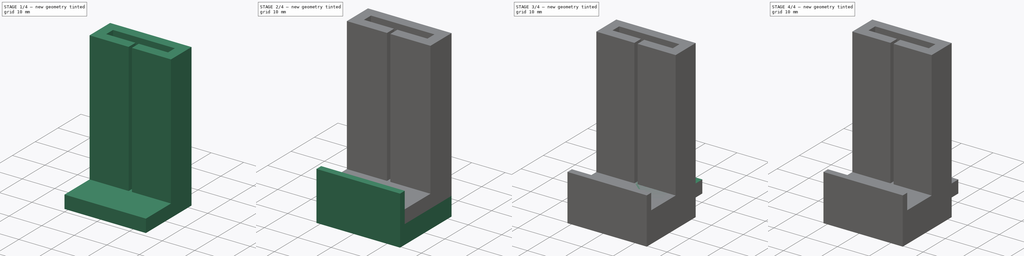
[diagram: build sequence overview — one tinted view per stage of 4, left to right]
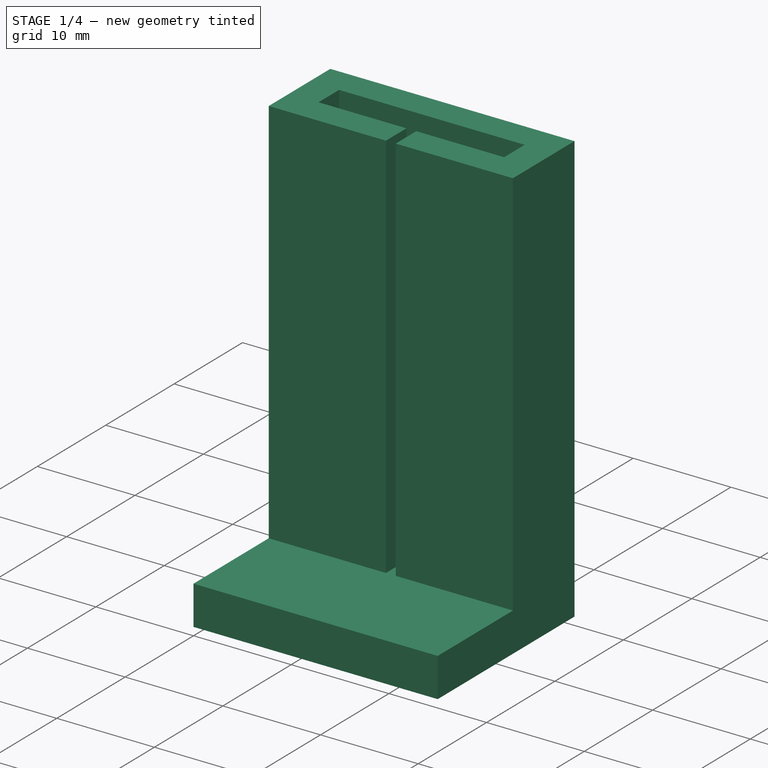
[diagram: stage 1 of 4 — iso view after this stage's code; geometry added in this stage tinted green]
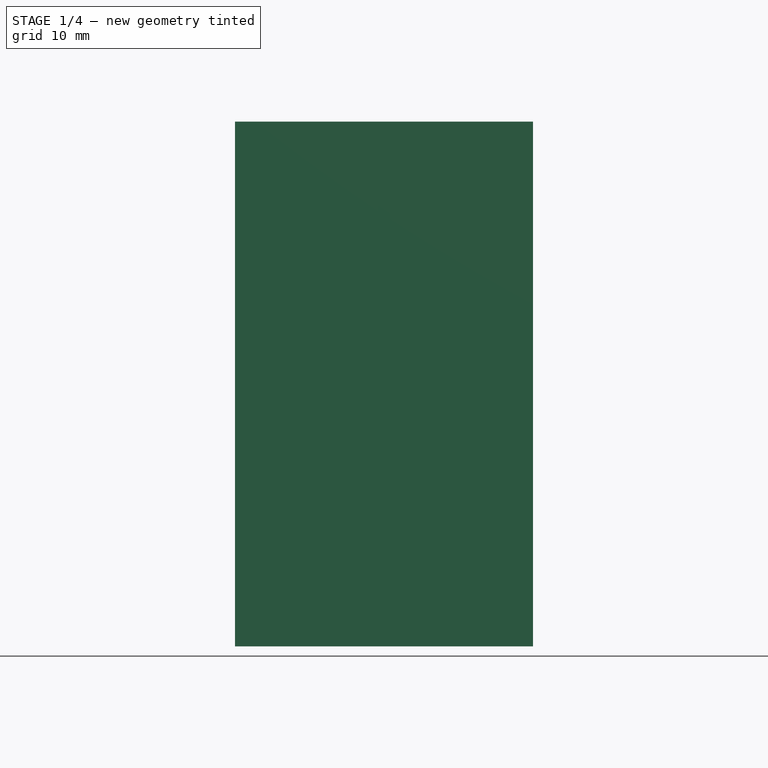
[diagram: stage 1 of 4 — front view after this stage's code; geometry added in this stage tinted green]
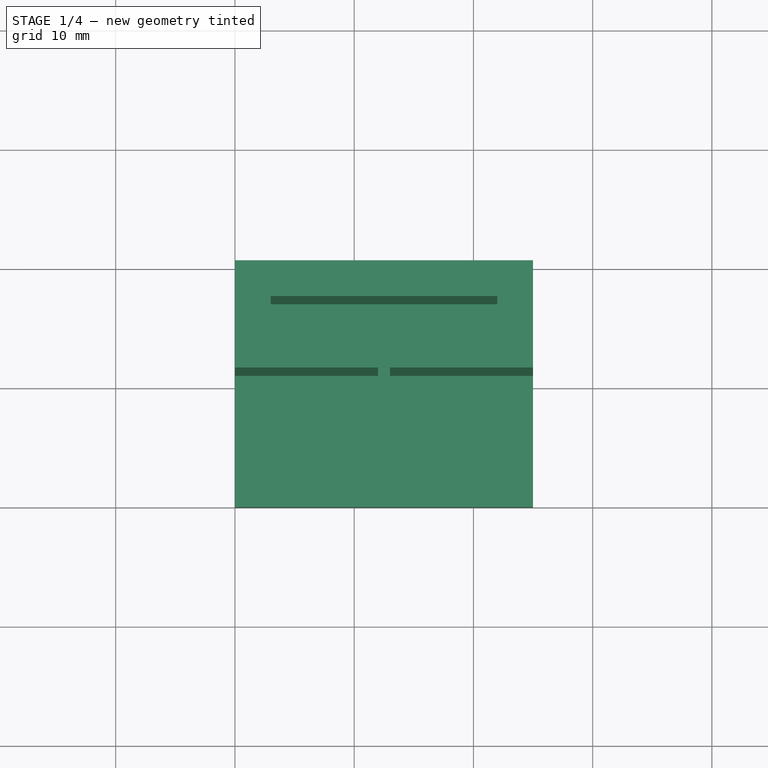
[diagram: stage 1 of 4 — top view after this stage's code; geometry added in this stage tinted green]
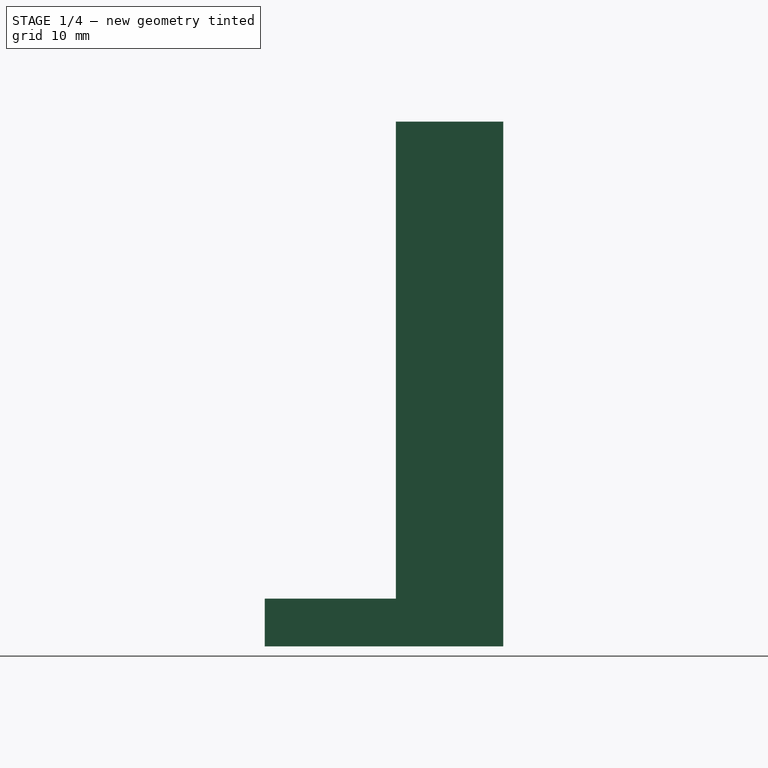
[diagram: stage 1 of 4 — right view after this stage's code; geometry added in this stage tinted green]
FCSTD DOCUMENT  (FreeCAD 0.18R16146 (Git))
Label: mobile stand
License: All rights reserved
LicenseURL: http://en.wikipedia.org/wiki/All_rights_reserved
objects: Sketcher::SketchObject×11, PartDesign::Pad×9, PartDesign::Plane×4, PartDesign::Body×2, Spreadsheet::Sheet×1, PartDesign::ShapeBinder×1
note: 36 computed .brp shape members not serialized (recipe doc carries the construction recipe); baked Part::Feature solids carry a one-line shape summary decoded from their .brp

FEATURE [Sketcher::SketchObject] Sketch  label="bottom-master-sketch"
  MapMode = 5
  Support = -> [XY_Plane001]
  expr: Constraints[41] = p.edge_thickness
  expr: Constraints[38] = p.rail_thickness * 4
  expr: Constraints[35] = p.rail_thickness
  expr: Constraints[34] = p.rail_thickness
  expr: Constraints[33] = p.rail_thickness
  expr: Constraints[32] = p.rail_thickness
  expr: Constraints[36] = p.rail_thickness
  expr: Constraints[31] = p.base_length
  expr: Constraints[28] = p.base_width
  sketch-geometry (14):
    g0: LineSegment StartX=0 StartY=0 StartZ=0 EndX=25 EndY=0 EndZ=0
    g1: LineSegment StartX=25 StartY=0 StartZ=0 EndX=25 EndY=20 EndZ=0
    g2: LineSegment StartX=25 StartY=20 StartZ=0 EndX=0 EndY=20 EndZ=0
    g3: LineSegment StartX=0 StartY=20 StartZ=0 EndX=0 EndY=0 EndZ=0
    g4: LineSegment StartX=0 StartY=11 StartZ=0 EndX=12 EndY=11 EndZ=0
    g5: LineSegment StartX=12 StartY=11 StartZ=0 EndX=12 EndY=14 EndZ=0
    g6: LineSegment StartX=12 StartY=14 StartZ=0 EndX=3 EndY=14 EndZ=0
    g7: LineSegment StartX=3 StartY=14 StartZ=0 EndX=3 EndY=17 EndZ=0
    g8: LineSegment StartX=3 StartY=17 StartZ=0 EndX=22 EndY=17 EndZ=0
    g9: LineSegment StartX=22 StartY=17 StartZ=0 EndX=22 EndY=14 EndZ=0
    g10: LineSegment StartX=22 StartY=14 StartZ=0 EndX=13 EndY=14 EndZ=0
    g11: LineSegment StartX=13 StartY=14 StartZ=0 EndX=13 EndY=11 EndZ=0
    g12: LineSegment StartX=13 StartY=11 StartZ=0 EndX=25 EndY=11 EndZ=0
    g13: LineSegment StartX=0 StartY=-2 StartZ=0 EndX=25 EndY=-2 EndZ=0
  constraints (43):
    c: Coincident(g0,g1)
    c: Coincident(g1,g2)
    c: Coincident(g2,g3)
    c: Coincident(g3,g0)
    c: Horizontal(g0)
    c: Horizontal(g2)
    c: Vertical(g1)
    c: Vertical(g3)
    c: Coincident(g0,g-1)
    c: PointOnObject(g4,g3)
    c: Horizontal(g4)
    c: Coincident(g4,g5)
    c: Vertical(g5)
    c: Coincident(g5,g6)
    c: Horizontal(g6)
    c: Coincident(g6,g7)
    c: Vertical(g7)
    c: Coincident(g7,g8)
    c: Horizontal(g8)
    c: Coincident(g8,g9)
    c: Vertical(g9)
    c: Coincident(g9,g10)
    c: Horizontal(g10)
    c: Coincident(g10,g11)
    c: Vertical(g11)
    c: Coincident(g11,g12)
    c: PointOnObject(g12,g1)
    c: Horizontal(g12)
    c: DistanceY(g1,g1) = 20
    c: Horizontal(g10,g5)
    c: Horizontal(g11,g4)
    c: DistanceX(g2,g2) = 25
    c: DistanceY(g8,g1) = 3
    c: DistanceX(g8,g1) = 3
    c: DistanceX(g2,g7) = 3
    c: DistanceY(g5,g5) = 3
    c: DistanceY(g7,g7) = 3
    c: Equal(g6,g10)
    c: DistanceX(g4,g4) = 12
    c: PointOnObject(g13,g-2)
    c: Horizontal(g13)
    c: DistanceY(g13,g0) = 2
    c: Vertical(g13,g0)
FEATURE [Sketcher::SketchObject] Sketch001  label="base"
  ExternalGeometry = -> [Sketch]
  MapMode = 5
  Support = -> [XY_Plane001]
  sketch-geometry (4):
    g0: LineSegment StartX=0 StartY=20 StartZ=0 EndX=25 EndY=20 EndZ=0
    g1: LineSegment StartX=25 StartY=20 StartZ=0 EndX=25 EndY=0 EndZ=0
    g2: LineSegment StartX=25 StartY=0 StartZ=0 EndX=0 EndY=0 EndZ=0
    g3: LineSegment StartX=0 StartY=0 StartZ=0 EndX=0 EndY=20 EndZ=0
  constraints (10):
    c: Coincident(g0,g1)
    c: Coincident(g1,g2)
    c: Coincident(g2,g3)
    c: Coincident(g3,g0)
    c: Horizontal(g0)
    c: Horizontal(g2)
    c: Vertical(g1)
    c: Vertical(g3)
    c: Coincident(g0,g-6)
    c: Coincident(g1,g-4)
FEATURE [PartDesign::Pad] Pad  label="base001"
  Length = 4
  Length2 = 100
  Profile = -> Sketch001
  Type = 0
  expr: Length = p.base_thickness
FEATURE [PartDesign::Plane] DatumPlane
  AttachmentOffset = pos=(0,0,4) rot=(0,0,1;0rad)
  Length = 41.4807
  MapMode = 5
  Placement = pos=(0,0,4) rot=(0,0,1;0rad)
  ResizeMode = 0
  Support = -> [XY_Plane001]
  Width = 36.4807
  expr: AttachmentOffset.Base.z = p.base_thickness
FEATURE [Sketcher::SketchObject] Sketch002
  ExternalGeometry = -> [Sketch]
  MapMode = 5
  Placement = pos=(0,0,4) rot=(0,0,1;0rad)
  Support = -> [DatumPlane]
  sketch-geometry (12):
    g0: LineSegment StartX=0 StartY=20 StartZ=0 EndX=25 EndY=20 EndZ=0
    g1: LineSegment StartX=25 StartY=20 StartZ=0 EndX=25 EndY=11 EndZ=0
    g2: LineSegment StartX=25 StartY=11 StartZ=0 EndX=13 EndY=11 EndZ=0
    g3: LineSegment StartX=13 StartY=11 StartZ=0 EndX=13 EndY=14 EndZ=0
    g4: LineSegment StartX=13 StartY=14 StartZ=0 EndX=22 EndY=14 EndZ=0
    g5: LineSegment StartX=22 StartY=14 StartZ=0 EndX=22 EndY=17 EndZ=0
    g6: LineSegment StartX=22 StartY=17 StartZ=0 EndX=3 EndY=17 EndZ=0
    g7: LineSegment StartX=3 StartY=17 StartZ=0 EndX=3 EndY=14 EndZ=0
    g8: LineSegment StartX=3 StartY=14 StartZ=0 EndX=12 EndY=14 EndZ=0
    g9: LineSegment StartX=12 StartY=14 StartZ=0 EndX=12 EndY=11 EndZ=0
    g10: LineSegment StartX=12 StartY=11 StartZ=0 EndX=0 EndY=11 EndZ=0
    g11: LineSegment StartX=0 StartY=11 StartZ=0 EndX=0 EndY=20 EndZ=0
  constraints (24):
    c: Coincident(g-4,g0)
    c: Coincident(g0,g-4)
    c: Coincident(g0,g1)
    c: Coincident(g1,g-12)
    c: Coincident(g1,g2)
    c: Coincident(g2,g-12)
    c: Coincident(g2,g3)
    c: Coincident(g3,g-11)
    c: Coincident(g3,g4)
    c: Coincident(g4,g-10)
    c: Coincident(g4,g5)
    c: Coincident(g5,g-9)
    c: Coincident(g5,g6)
    c: Coincident(g6,g-8)
    c: Coincident(g6,g7)
    c: Coincident(g7,g-8)
    c: Coincident(g7,g8)
    c: Coincident(g8,g-7)
    c: Coincident(g8,g9)
    c: Coincident(g9,g-6)
    c: Coincident(g9,g10)
    c: Coincident(g10,g-5)
    c: Coincident(g10,g11)
    c: Coincident(g11,g0)
FEATURE [PartDesign::Pad] Pad001  label="rail"
  BaseFeature = -> Pad
  Length = 40
  Length2 = 100
  Profile = -> Sketch002
  Type = 0
  expr: Length = p.bottom_height
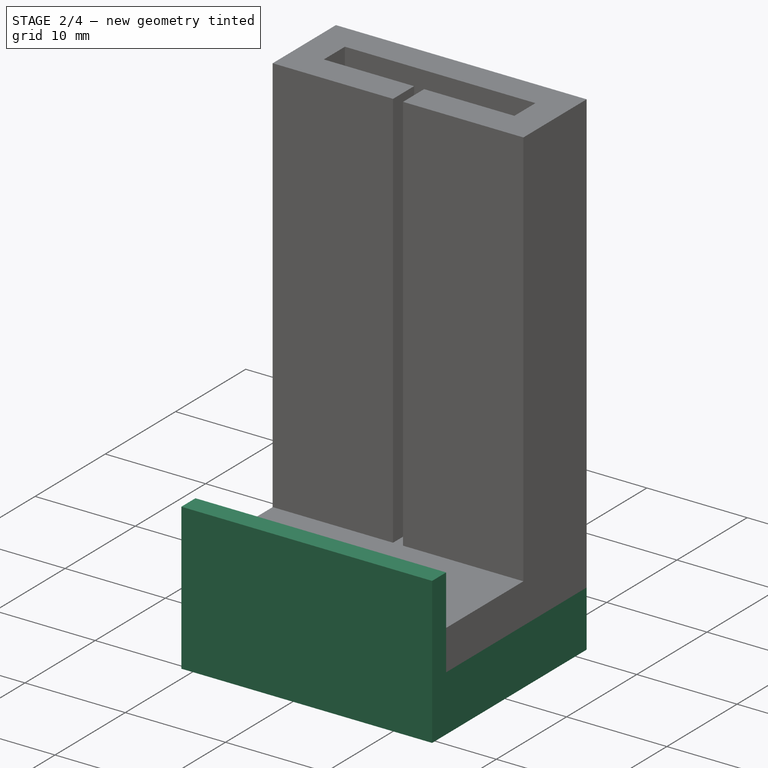
[diagram: stage 2 of 4 — iso view after this stage's code; geometry added in this stage tinted green]
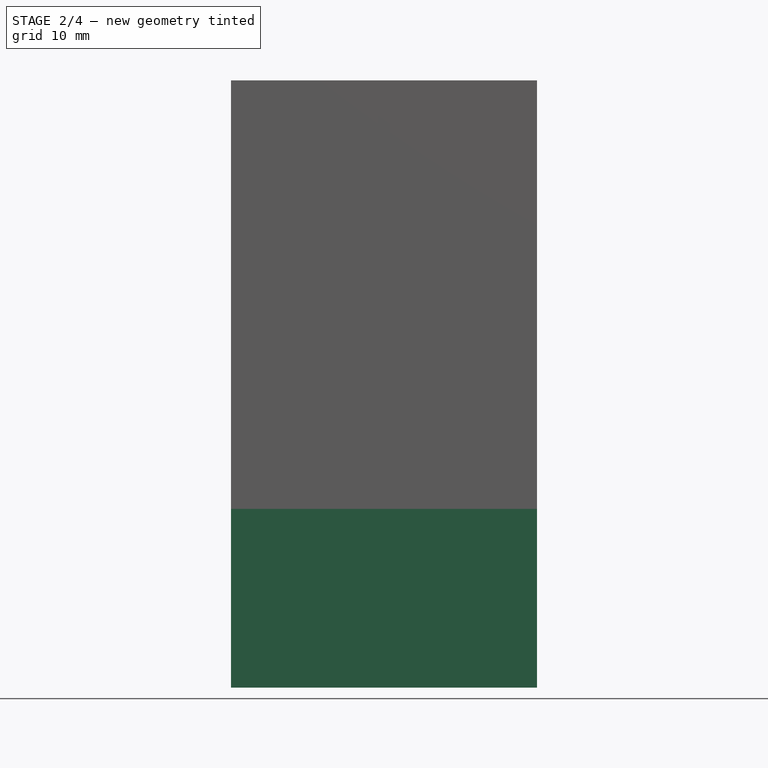
[diagram: stage 2 of 4 — front view after this stage's code; geometry added in this stage tinted green]
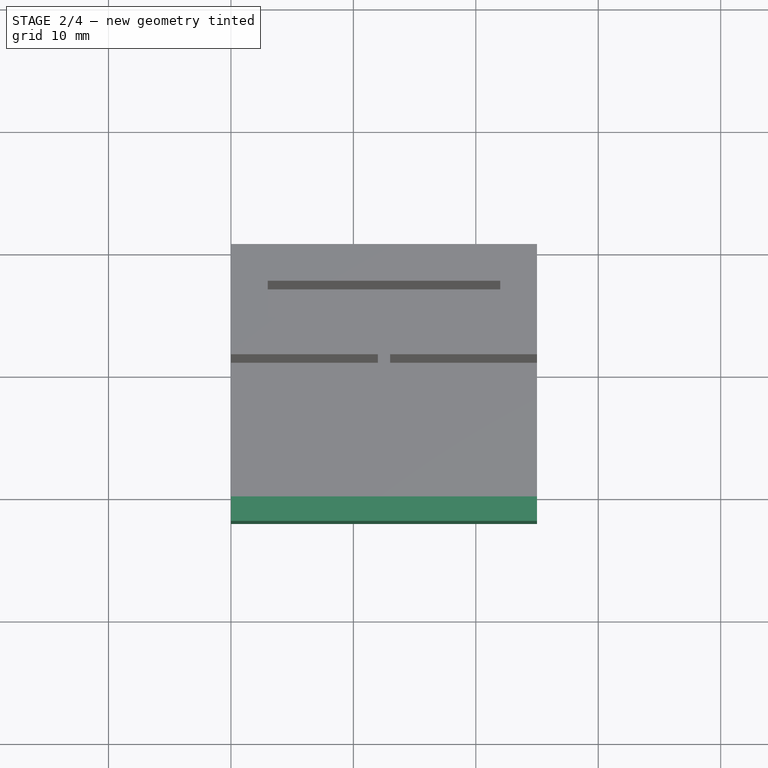
[diagram: stage 2 of 4 — top view after this stage's code; geometry added in this stage tinted green]
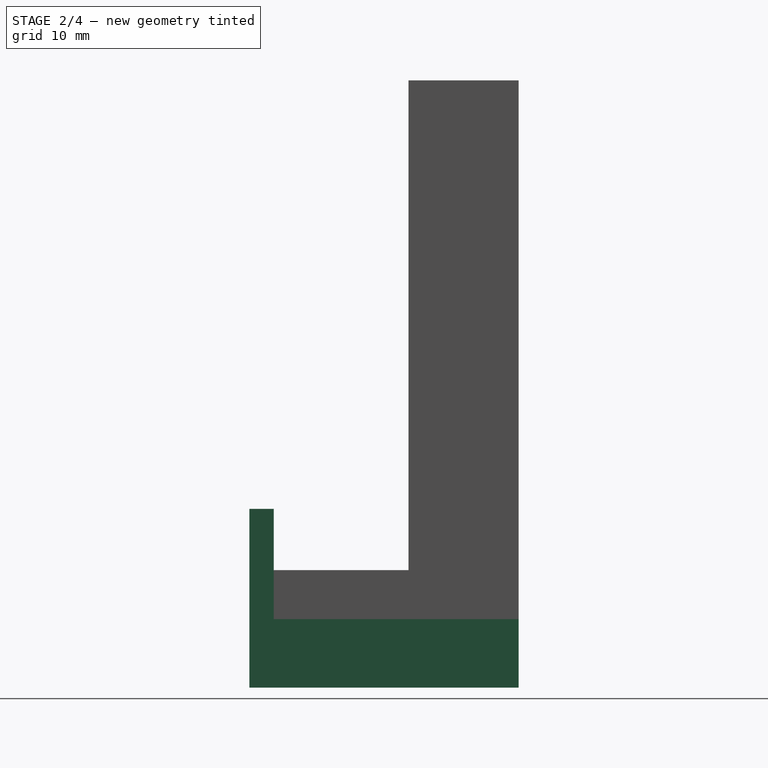
[diagram: stage 2 of 4 — right view after this stage's code; geometry added in this stage tinted green]
FEATURE [PartDesign::Body] Body001  label="top"
  Group = -> [Sketch004,Sketch003,Pad002,DatumPlane001,Sketch005,Pad003,ShapeBinder,DatumPlane003,Sketch007,Pad005,Sketch008,Pad006]
  Origin = -> Origin002
  Placement = pos=(25,-3,85) rot=(0,1,0;3.14159rad)
  Tip = -> Pad006
FEATURE [Sketcher::SketchObject] Sketch009  label="edge_sketch001"
  MapMode = 5
  Placement = pos=(0,0,0) rot=(0.57735,0.57735,0.57735;2.0944rad)
  Support = -> [YZ_Plane001]
  expr: Constraints[10] = p.edge_length
  expr: Constraints[9] = p.edge_thickness
  sketch-geometry (4):
    g0: LineSegment StartX=0 StartY=0 StartZ=0 EndX=-2 EndY=0 EndZ=0
    g1: LineSegment StartX=-2 StartY=0 StartZ=0 EndX=-2 EndY=9 EndZ=0
    g2: LineSegment StartX=-2 StartY=9 StartZ=0 EndX=0 EndY=9 EndZ=0
    g3: LineSegment StartX=0 StartY=9 StartZ=0 EndX=0 EndY=0 EndZ=0
  constraints (11):
    c: Coincident(g0,g1)
    c: Coincident(g1,g2)
    c: Coincident(g2,g3)
    c: Coincident(g3,g0)
    c: Horizontal(g0)
    c: Horizontal(g2)
    c: Vertical(g1)
    c: Vertical(g3)
    c: Coincident(g0,g-1)
    c: DistanceX(g0,g0) = 2
    c: DistanceY(g1,g1) = 9
FEATURE [PartDesign::Pad] Pad007
  BaseFeature = -> Pad001
  Length = 25
  Length2 = 100
  Profile = -> Sketch009
  Type = 0
  expr: Length = p.base_length
FEATURE [Sketcher::SketchObject] Sketch010  label="nut_sketch"
  ExternalGeometry = -> [Sketch]
  MapMode = 5
  Support = -> [XY_Plane001]
  expr: Constraints[11] = p.nut_hole_diameter
  sketch-geometry (5):
    g0: LineSegment StartX=0 StartY=20 StartZ=0 EndX=25 EndY=20 EndZ=0
    g1: LineSegment StartX=25 StartY=20 StartZ=0 EndX=25 EndY=-2 EndZ=0
    g2: LineSegment StartX=25 StartY=-2 StartZ=0 EndX=0 EndY=-2 EndZ=0
    g3: LineSegment StartX=0 StartY=-2 StartZ=0 EndX=0 EndY=20 EndZ=0
    g4: Circle CenterX=12.5 CenterY=9 CenterZ=0 NormalX=0 NormalY=0 NormalZ=1 AngleXU=0 Radius=5.5
  constraints (12):
    c: Coincident(g0,g1)
    c: Coincident(g1,g2)
    c: Coincident(g2,g3)
    c: Coincident(g3,g0)
    c: Horizontal(g0)
    c: Horizontal(g2)
    c: Vertical(g1)
    c: Vertical(g3)
    c: Coincident(g0,g-4)
    c: Coincident(g1,g-3)
    c: Symmetric(g2,g0,g4)
    c: Diameter(g4) = 11
FEATURE [PartDesign::Pad] Pad008
  BaseFeature = -> Pad007
  Length = 5.6
  Length2 = 100
  Profile = -> Sketch010
  Reversed = true
  Type = 0
  expr: Length = p.bottom_nut_height
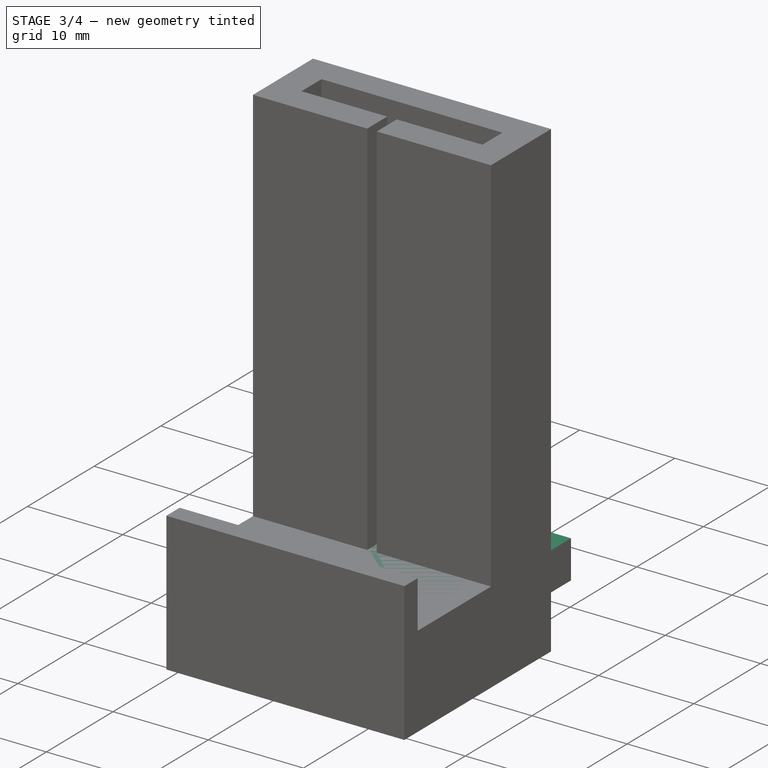
[diagram: stage 3 of 4 — iso view after this stage's code; geometry added in this stage tinted green]
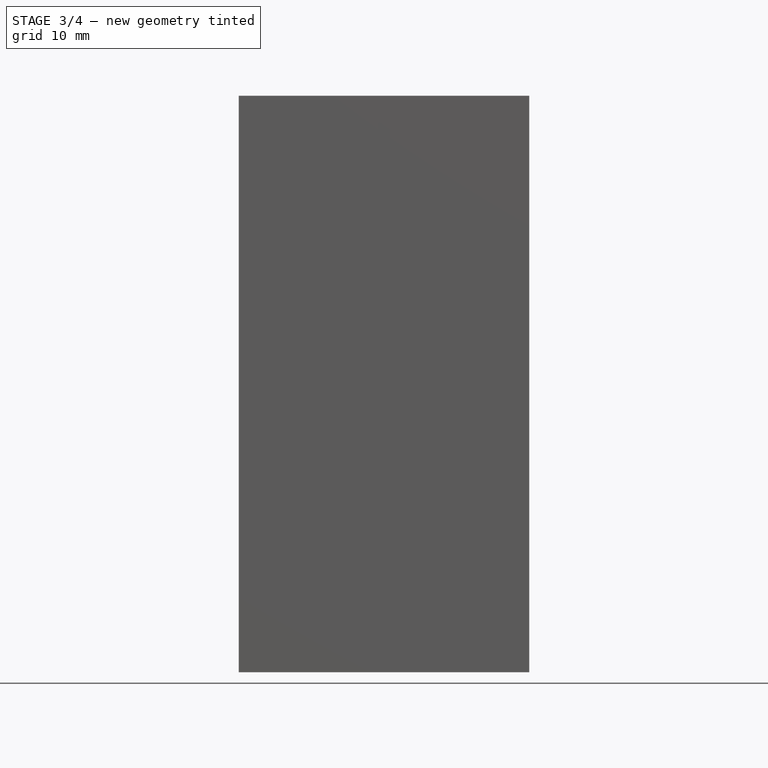
[diagram: stage 3 of 4 — front view after this stage's code; geometry added in this stage tinted green]
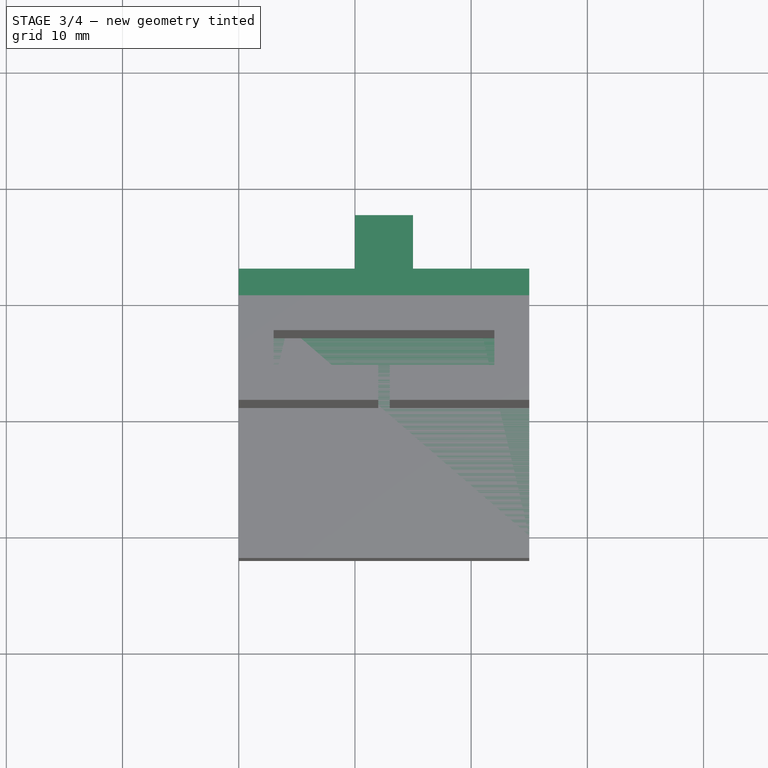
[diagram: stage 3 of 4 — top view after this stage's code; geometry added in this stage tinted green]
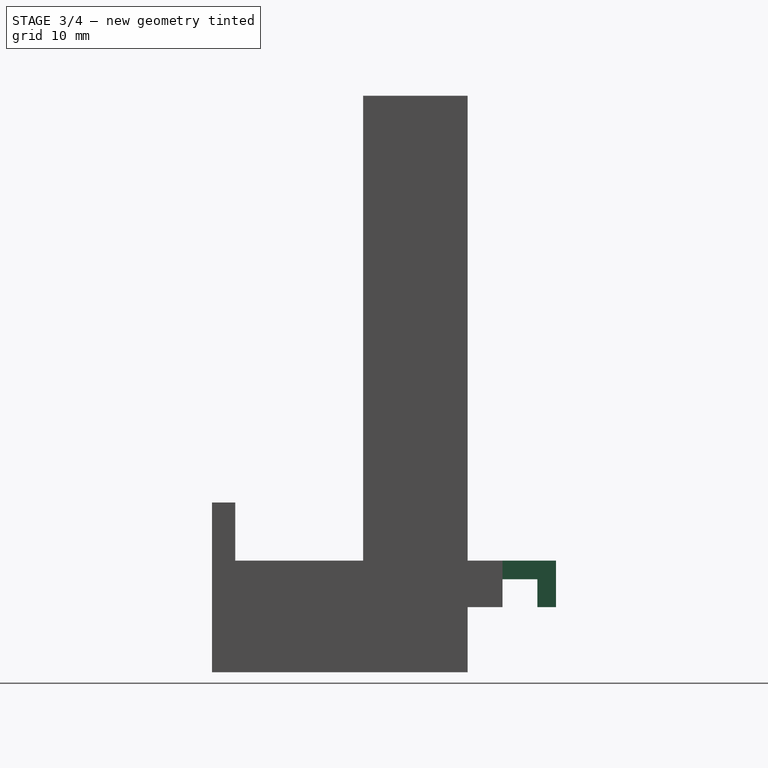
[diagram: stage 3 of 4 — right view after this stage's code; geometry added in this stage tinted green]
FEATURE [PartDesign::Plane] DatumPlane001
  AttachmentOffset = pos=(0,0,4) rot=(0,0,1;0rad)
  Length = 42.2553
  MapMode = 5
  Placement = pos=(0,0,4) rot=(0,0,1;0rad)
  ResizeMode = 0
  Support = -> [XY_Plane002]
  Width = 44.8553
  expr: AttachmentOffset.Base.z = p.base_thickness
FEATURE [Sketcher::SketchObject] Sketch004  label="top-master-sketch"
  MapMode = 5
  Support = -> [XY_Plane002]
  expr: Constraints[32] = p.rail_thickness
  expr: Constraints[22] = (p.base_length - p.insert_length) / 2
  expr: Constraints[21] = p.insert_length
  expr: Constraints[20] = p.insert_thickness
  expr: Constraints[18] = p.base_width
  expr: Constraints[19] = p.base_length
  sketch-geometry (12):
    g0: LineSegment StartX=0 StartY=0 StartZ=0 EndX=25 EndY=0 EndZ=0
    g1: LineSegment StartX=25 StartY=0 StartZ=0 EndX=25 EndY=20 EndZ=0
    g2: LineSegment StartX=25 StartY=20 StartZ=0 EndX=0 EndY=20 EndZ=0
    g3: LineSegment StartX=0 StartY=20 StartZ=0 EndX=0 EndY=0 EndZ=0
    g4: LineSegment StartX=4.2 StartY=20 StartZ=0 EndX=20.8 EndY=20 EndZ=0
    g5: LineSegment StartX=20.8 StartY=20 StartZ=0 EndX=20.8 EndY=18 EndZ=0
    g6: LineSegment StartX=20.8 StartY=18 StartZ=0 EndX=4.2 EndY=18 EndZ=0
    g7: LineSegment StartX=4.2 StartY=18 StartZ=0 EndX=4.2 EndY=20 EndZ=0
    g8: LineSegment StartX=0 StartY=20 StartZ=0 EndX=25 EndY=20 EndZ=0
    g9: LineSegment StartX=25 StartY=20 StartZ=0 EndX=25 EndY=23 EndZ=0
    g10: LineSegment StartX=25 StartY=23 StartZ=0 EndX=0 EndY=23 EndZ=0
    g11: LineSegment StartX=0 StartY=23 StartZ=0 EndX=0 EndY=20 EndZ=0
  constraints (33):
    c: Coincident(g0,g1)
    c: Coincident(g1,g2)
    c: Coincident(g2,g3)
    c: Coincident(g3,g0)
    c: Horizontal(g0)
    c: Horizontal(g2)
    c: Vertical(g1)
    c: Vertical(g3)
    c: Coincident(g0,g-1)
    c: Coincident(g4,g5)
    c: Coincident(g5,g6)
    c: Coincident(g6,g7)
    c: Coincident(g7,g4)
    c: Horizontal(g4)
    c: Horizontal(g6)
    c: Vertical(g5)
    c: Vertical(g7)
    c: PointOnObject(g4,g2)
    c: DistanceY(g1,g1) = 20
    c: DistanceX(g0,g0) = 25
    c: DistanceY(g5,g5) = 2
    c: DistanceX(g6,g6) = 16.6
    c: DistanceX(g2,g4) = 4.2
    c: Coincident(g8,g9)
    c: Coincident(g9,g10)
    c: Coincident(g10,g11)
    c: Coincident(g11,g8)
    c: Horizontal(g10)
    c: Vertical(g9)
    c: Vertical(g11)
    c: Coincident(g8,g2)
    c: Coincident(g8,g1)
    c: DistanceY(g9,g9) = 3
FEATURE [Sketcher::SketchObject] Sketch003  label="base003"
  ExternalGeometry = -> [Sketch004]
  MapMode = 5
  Support = -> [XY_Plane002]
  sketch-geometry (4):
    g0: LineSegment StartX=0 StartY=23 StartZ=0 EndX=25 EndY=23 EndZ=0
    g1: LineSegment StartX=25 StartY=23 StartZ=0 EndX=25 EndY=0 EndZ=0
    g2: LineSegment StartX=25 StartY=0 StartZ=0 EndX=0 EndY=0 EndZ=0
    g3: LineSegment StartX=0 StartY=0 StartZ=0 EndX=0 EndY=23 EndZ=0
  constraints (10):
    c: Coincident(g0,g1)
    c: Coincident(g1,g2)
    c: Coincident(g2,g3)
    c: Coincident(g3,g0)
    c: Horizontal(g0)
    c: Horizontal(g2)
    c: Vertical(g1)
    c: Vertical(g3)
    c: Coincident(g0,g-3)
    c: Coincident(g1,g-4)
FEATURE [PartDesign::Pad] Pad002  label="base002"
  Length = 4
  Length2 = 100
  Profile = -> Sketch003
  Type = 0
  expr: Length = p.base_thickness
FEATURE [Sketcher::SketchObject] Sketch005
  ExternalGeometry = -> [Sketch004]
  MapMode = 5
  Placement = pos=(0,0,4) rot=(0,0,1;0rad)
  Support = -> [DatumPlane001]
  sketch-geometry (4):
    g0: LineSegment StartX=4.2 StartY=20 StartZ=0 EndX=20.8 EndY=20 EndZ=0
    g1: LineSegment StartX=20.8 StartY=20 StartZ=0 EndX=20.8 EndY=18 EndZ=0
    g2: LineSegment StartX=20.8 StartY=18 StartZ=0 EndX=4.2 EndY=18 EndZ=0
    g3: LineSegment StartX=4.2 StartY=18 StartZ=0 EndX=4.2 EndY=20 EndZ=0
  constraints (10):
    c: Coincident(g0,g1)
    c: Coincident(g1,g2)
    c: Coincident(g2,g3)
    c: Coincident(g3,g0)
    c: Horizontal(g0)
    c: Horizontal(g2)
    c: Vertical(g1)
    c: Vertical(g3)
    c: Coincident(g0,g-8)
    c: Coincident(g1,g-7)
FEATURE [PartDesign::Pad] Pad003
  BaseFeature = -> Pad002
  Length = 40
  Length2 = 100
  Profile = -> Sketch005
  Type = 0
  expr: Length = p.bottom_height
FEATURE [Spreadsheet::Sheet] Spreadsheet  label="p"
  cells = A1=base_length; B1(base_length)==25mm; A2=base_width; B2(base_width)==20mm; A3=base_thickness; B3(base_thickness)==4mm; A4=rail_thickness; B4(rail_thickness)==3mm; A5=insert_thickness; B5(insert_thickness)==rail_thickness - 1mm; A6=insert_length; B6(insert_length)==base_length - 2 * base_thickness - 0.4mm; A7=bottom_height; B7(bottom_height)==40mm; A8=top_height; B8(top_height)==bottom_height; A9=hook_thickness; B9(hook_thickness)==5mm; A10=edge_thickness; B10(edge_thickness)==2mm; A11=edge_length; B11(edge_length)==5mm + base_thickness; A12=bottom_nut_height; B12(bottom_nut_height)==5.6mm; A13=nut_hole_diameter; B13(nut_hole_diameter)==11mm
FEATURE [PartDesign::Plane] DatumPlane002  label="hook_plane"
  AttachmentOffset = pos=(0,0,12.5) rot=(0,0,1;0rad)
  Length = 38.0498
  MapMode = 5
  Placement = pos=(12.5,-2.8e-15,2.8e-15) rot=(0.57735,0.57735,0.57735;2.0944rad)
  ResizeMode = 0
  Support = -> [YZ_Plane001]
  Width = 62.0498
  expr: AttachmentOffset.Base.z = p.base_length / 2
FEATURE [Sketcher::SketchObject] Sketch006  label="hook_sketch"
  MapMode = 5
  Placement = pos=(12.5,-2.8e-15,2.8e-15) rot=(0.57735,0.57735,0.57735;2.0944rad)
  Support = -> [DatumPlane002]
  expr: Constraints[17] = p.bottom_nut_height
  expr: Constraints[16] = p.base_width
  sketch-geometry (6):
    g0: LineSegment StartX=20 StartY=-0.6 StartZ=0 EndX=24.6 EndY=-0.6 EndZ=0
    g1: LineSegment StartX=24.6 StartY=-0.6 StartZ=0 EndX=24.6 EndY=-5.6 EndZ=0
    g2: LineSegment StartX=24.6 StartY=-5.6 StartZ=0 EndX=23 EndY=-5.6 EndZ=0
    g3: LineSegment StartX=23 StartY=-5.6 StartZ=0 EndX=23 EndY=-2.2 EndZ=0
    g4: LineSegment StartX=23 StartY=-2.2 StartZ=0 EndX=20 EndY=-2.2 EndZ=0
    g5: LineSegment StartX=20 StartY=-2.2 StartZ=0 EndX=20 EndY=-0.6 EndZ=0
  constraints (18):
    c: Horizontal(g0)
    c: Coincident(g0,g1)
    c: Vertical(g1)
    c: Coincident(g1,g2)
    c: Horizontal(g2)
    c: Coincident(g2,g3)
    c: Vertical(g3)
    c: Coincident(g3,g4)
    c: Horizontal(g4)
    c: Coincident(g4,g5)
    c: Coincident(g5,g0)
    c: Vertical(g5)
    c: DistanceY(g1,g0) = 5
    c: DistanceX(g4,g3) = 3
    c: DistanceX(g3,g0) = 1.6
    c: DistanceY(g3,g0) = 1.6
    c: DistanceX(g-1,g0) = 20
    c: DistanceY(g2,g-1) = 5.6
FEATURE [PartDesign::ShapeBinder] ShapeBinder
  Placement = pos=(12.5,-2.8e-15,2.8e-15) rot=(0.57735,0.57735,0.57735;2.0944rad)
  Support = -> [Sketch006]
  TraceSupport = false
FEATURE [PartDesign::Plane] DatumPlane003  label="hook_plane001"
  AttachmentOffset = pos=(0,0,12.5) rot=(0,0,1;0rad)
  Length = 46.612
  MapMode = 5
  Placement = pos=(12.5,-2.8e-15,2.8e-15) rot=(0.57735,0.57735,0.57735;2.0944rad)
  ResizeMode = 0
  Support = -> [YZ_Plane002]
  Width = 63.012
  expr: AttachmentOffset.Base.z = p.base_length / 2
FEATURE [Sketcher::SketchObject] Sketch007
  ExternalGeometry = -> [Pad003]
  MapMode = 5
  Placement = pos=(12.5,-2.8e-15,2.8e-15) rot=(0.57735,0.57735,0.57735;2.0944rad)
  Support = -> [DatumPlane003]
  sketch-geometry (6):
    g0: LineSegment StartX=23 StartY=4 StartZ=0 EndX=27.6 EndY=4 EndZ=0
    g1: LineSegment StartX=27.6 StartY=4 StartZ=0 EndX=27.6 EndY=0 EndZ=0
    g2: LineSegment StartX=27.6 StartY=0 StartZ=0 EndX=26 EndY=0 EndZ=0
    g3: LineSegment StartX=26 StartY=0 StartZ=0 EndX=26 EndY=2.4 EndZ=0
    g4: LineSegment StartX=26 StartY=2.4 StartZ=0 EndX=23 EndY=2.4 EndZ=0
    g5: LineSegment StartX=23 StartY=2.4 StartZ=0 EndX=23 EndY=4 EndZ=0
  constraints (17):
    c: Coincident(g-3,g0)
    c: Horizontal(g0)
    c: Coincident(g0,g1)
    c: PointOnObject(g1,g-1)
    c: Vertical(g1)
    c: Coincident(g1,g2)
    c: Horizontal(g2)
    c: Coincident(g2,g3)
    c: Vertical(g3)
    c: Coincident(g3,g4)
    c: PointOnObject(g4,g-3)
    c: Horizontal(g4)
    c: Coincident(g4,g5)
    c: Coincident(g5,g0)
    c: DistanceX(g3,g0) = 1.6
    c: DistanceX(g4,g3) = 3
    c: DistanceY(g3,g0) = 1.6
FEATURE [PartDesign::Pad] Pad005
  BaseFeature = -> Pad003
  Length = 5
  Length2 = 100
  Midplane = true
  Profile = -> Sketch007
  Type = 0
  expr: Length = p.hook_thickness
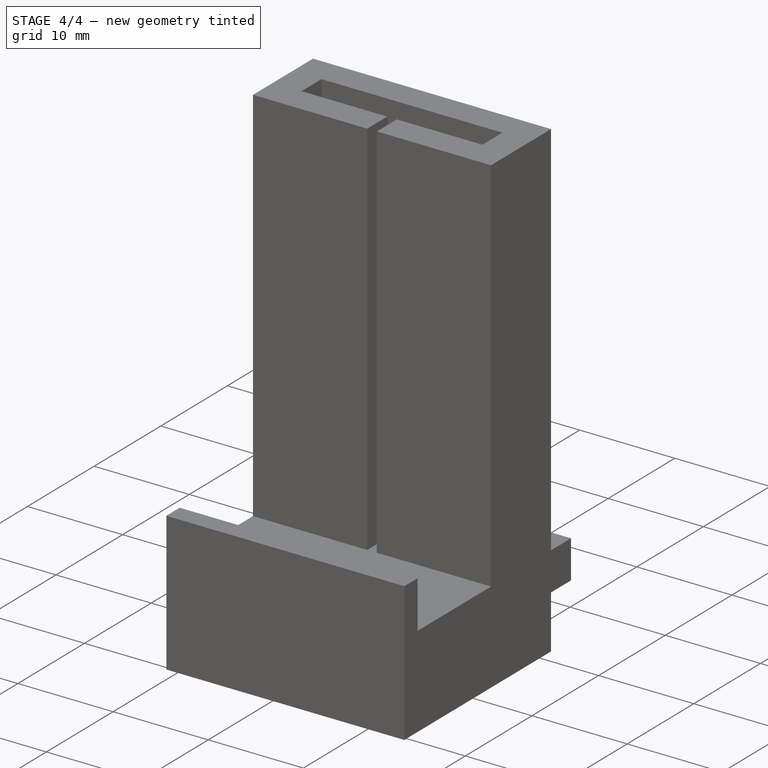
[diagram: stage 4 of 4 — iso view after this stage's code; geometry added in this stage tinted green]
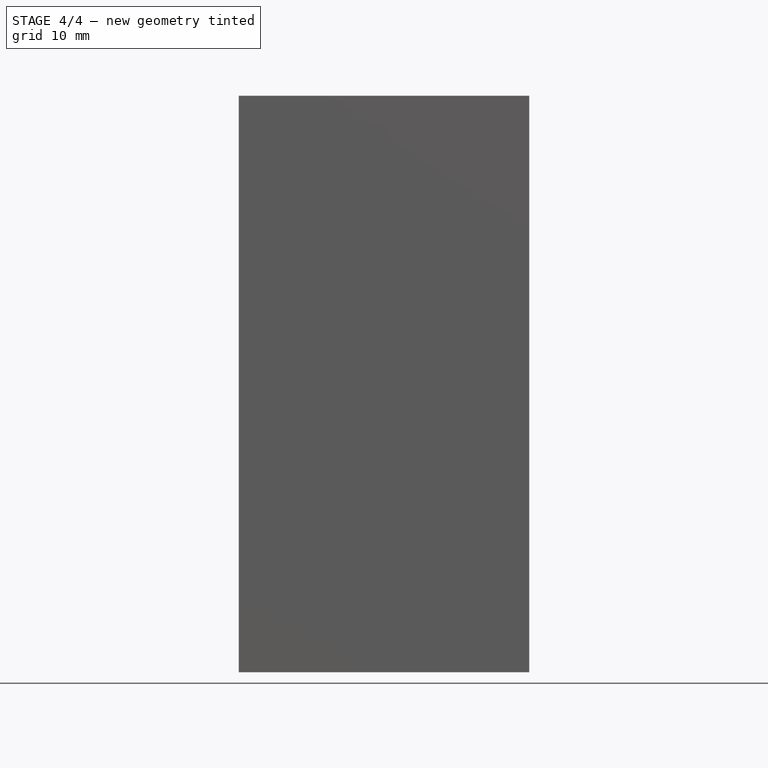
[diagram: stage 4 of 4 — front view after this stage's code; geometry added in this stage tinted green]
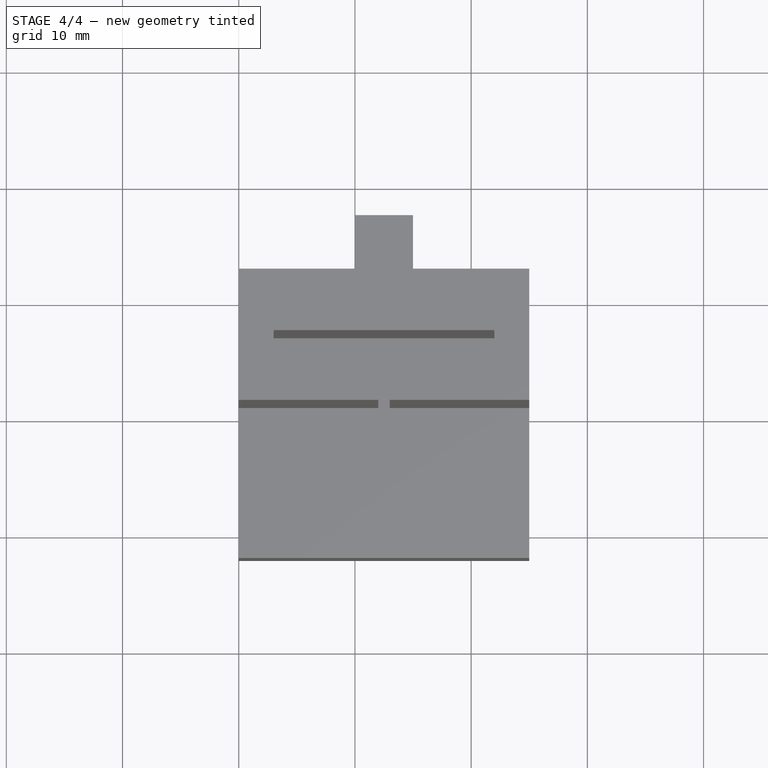
[diagram: stage 4 of 4 — top view after this stage's code; geometry added in this stage tinted green]
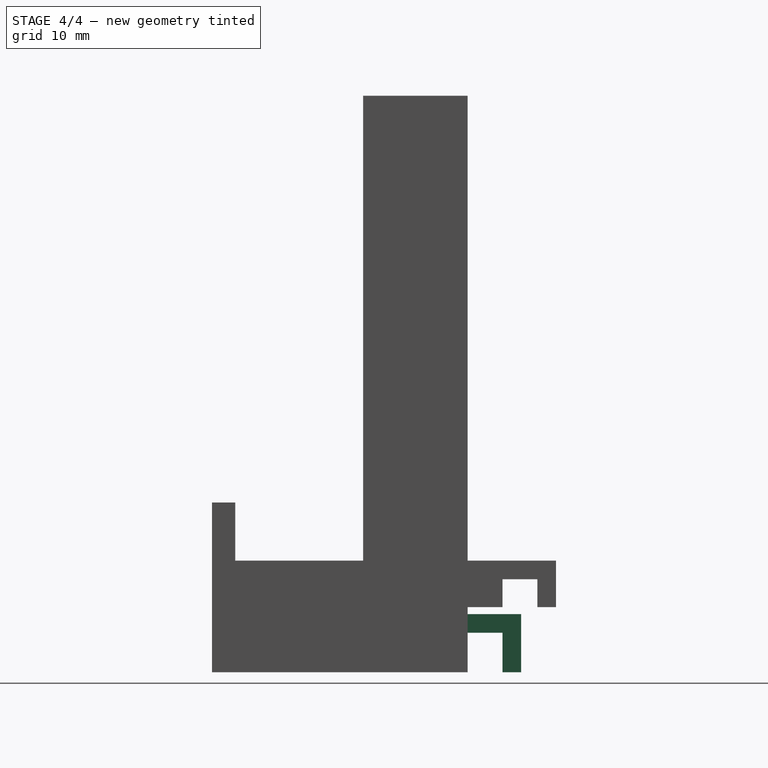
[diagram: stage 4 of 4 — right view after this stage's code; geometry added in this stage tinted green]
FEATURE [Sketcher::SketchObject] Sketch008  label="edge_sketch"
  MapMode = 5
  Placement = pos=(0,0,0) rot=(0.57735,0.57735,0.57735;2.0944rad)
  Support = -> [YZ_Plane002]
  expr: Constraints[10] = p.edge_length
  expr: Constraints[9] = p.edge_thickness
  sketch-geometry (4):
    g0: LineSegment StartX=0 StartY=0 StartZ=0 EndX=-2 EndY=0 EndZ=0
    g1: LineSegment StartX=-2 StartY=0 StartZ=0 EndX=-2 EndY=9 EndZ=0
    g2: LineSegment StartX=-2 StartY=9 StartZ=0 EndX=0 EndY=9 EndZ=0
    g3: LineSegment StartX=0 StartY=9 StartZ=0 EndX=0 EndY=0 EndZ=0
  constraints (11):
    c: Coincident(g0,g1)
    c: Coincident(g1,g2)
    c: Coincident(g2,g3)
    c: Coincident(g3,g0)
    c: Horizontal(g0)
    c: Horizontal(g2)
    c: Vertical(g1)
    c: Vertical(g3)
    c: Coincident(g0,g-1)
    c: DistanceX(g0,g0) = 2
    c: DistanceY(g0,g1) = 9
FEATURE [PartDesign::Pad] Pad006  label="edge_pad"
  BaseFeature = -> Pad005
  Length = 25
  Length2 = 100
  Profile = -> Sketch008
  Type = 0
  expr: Length = p.base_length
FEATURE [PartDesign::Pad] Pad004  label="hook_pad"
  BaseFeature = -> Pad008
  Length = 5
  Length2 = 100
  Midplane = true
  Profile = -> Sketch006
  Type = 0
  expr: Length = p.hook_thickness
FEATURE [PartDesign::Body] Body  label="bottom"
  Group = -> [Sketch,Sketch001,Pad,DatumPlane,Sketch002,Pad001,DatumPlane002,Sketch006,Sketch009,Pad007,Sketch010,Pad008,Pad004]
  Origin = -> Origin001
  Tip = -> Pad004
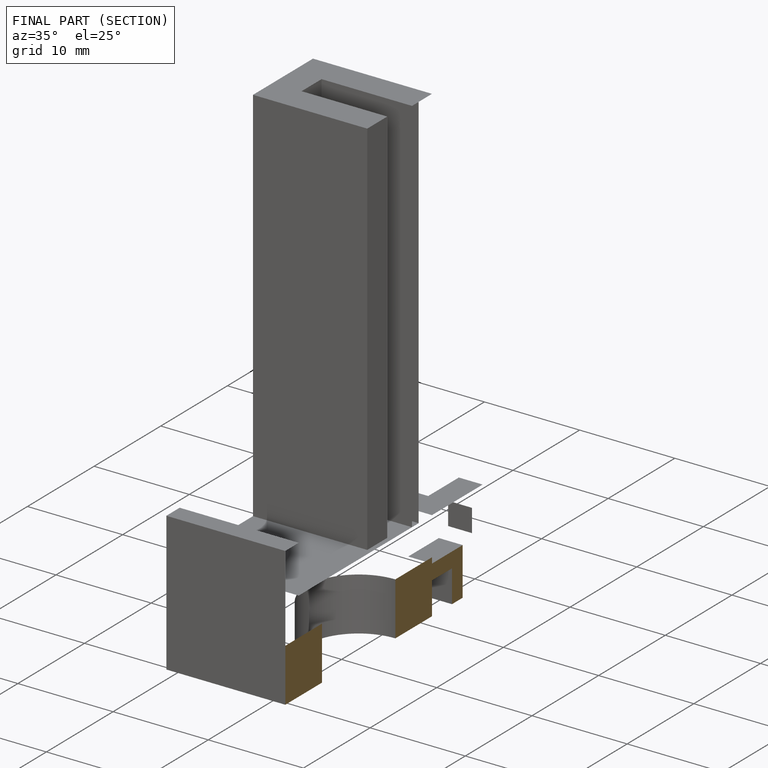
[diagram: finished part — half-section view (interior)]
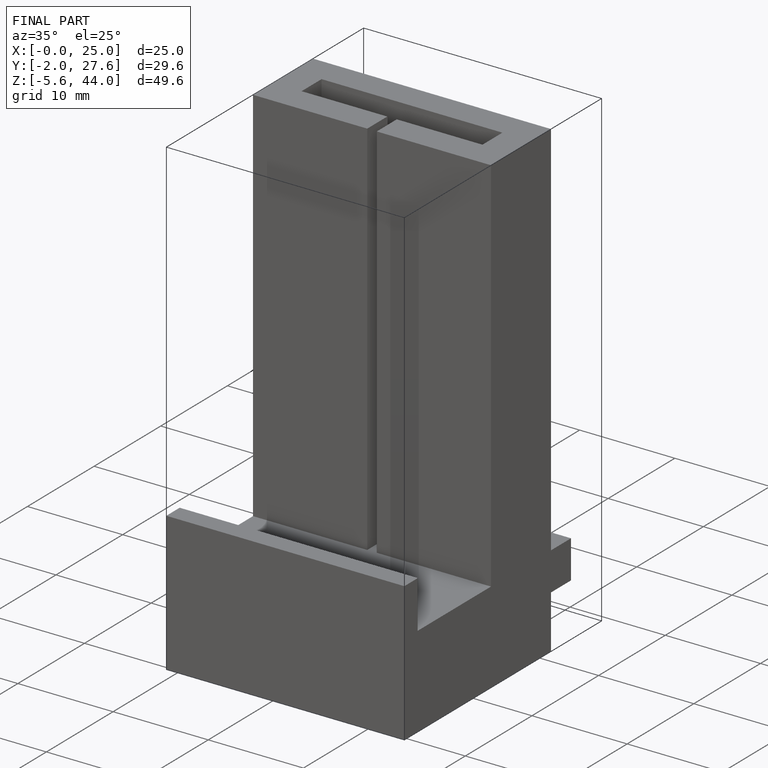
[diagram: finished part — iso view with bounding-box wireframe]
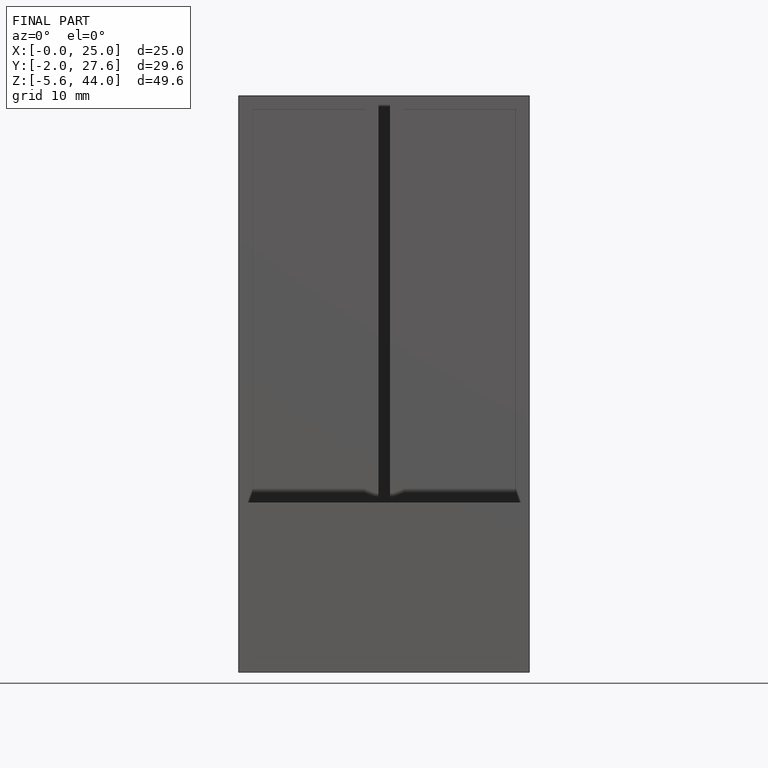
[diagram: finished part — front view with bounding-box wireframe]
